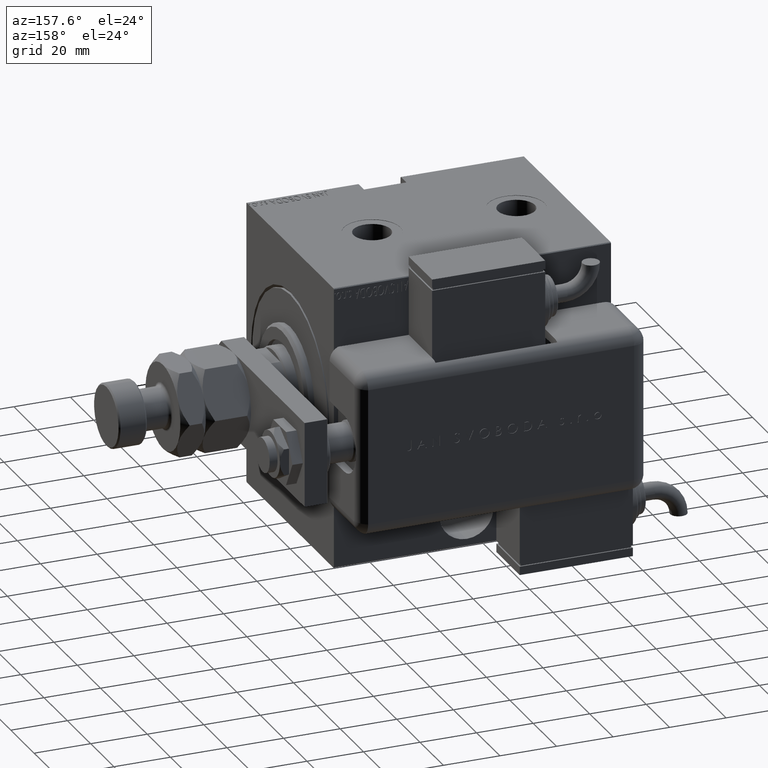
[diagram: clean part render]
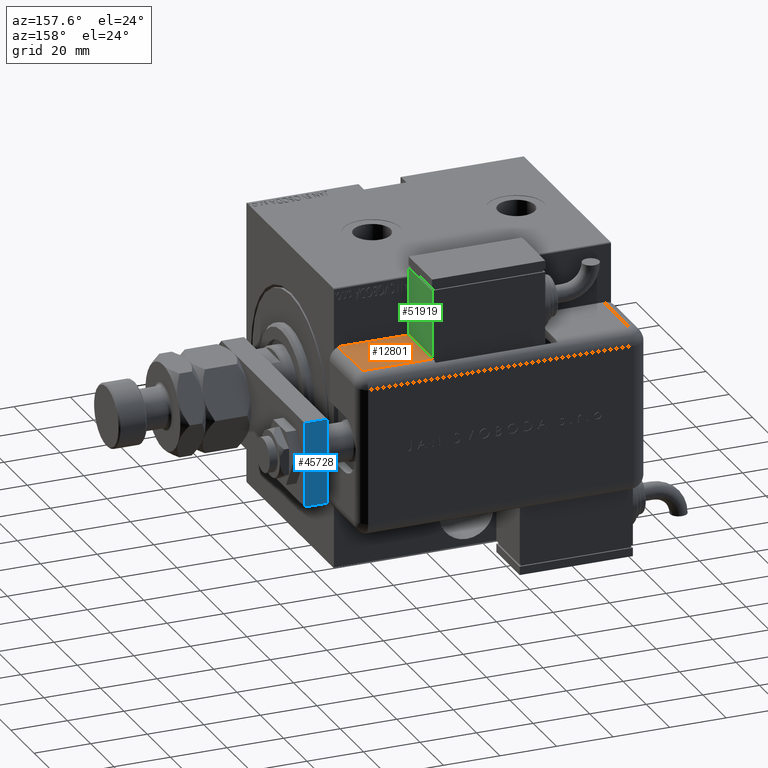
[diagram: same view with three faces highlighted in distinct colors, each labeled with its STEP entity id]
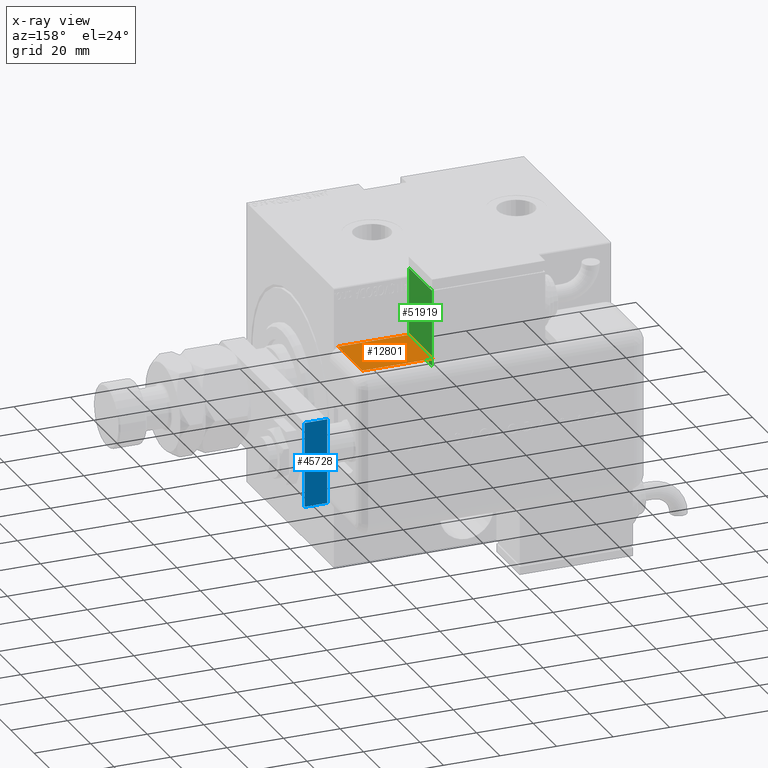
[diagram: x-ray of the same camera — body ghosted, the three highlighted faces saturated]
A machine part, auxiliary view with three faces highlighted in distinct colors.
The next image is the same camera in x-ray (body ghosted, the three faces saturated) — at least one of them is partly hidden behind the body in this view.
Their STEP definitions:

[orange] entity #12801 — the highlighted planar face has unit normal (0, 0, -1).
#1381 = VECTOR ( 'NONE', #40958, 1000.000000000000000 ) ;
#3936 = CARTESIAN_POINT ( 'NONE',  ( -28.99999999999999645, 25.79999999999998295, 99.00000000000000000 ) ) ;
#5891 = ORIENTED_EDGE ( 'NONE', *, *, #12040, .F. ) ;
#6803 = LINE ( 'NONE', #26700, #10423 ) ;
#6874 = DIRECTION ( 'NONE',  ( 1.000000000000000000, 0.000000000000000000, -0.000000000000000000 ) ) ;
#8875 = LINE ( 'NONE', #27859, #18132 ) ;
#10095 = DIRECTION ( 'NONE',  ( -0.000000000000000000, 1.000000000000000000, -0.000000000000000000 ) ) ;
#10423 = VECTOR ( 'NONE', #12383, 1000.000000000000000 ) ;
#11231 = CARTESIAN_POINT ( 'NONE',  ( -28.99999999999999645, 25.79999999999998295, 99.00000000000000000 ) ) ;
#12040 = EDGE_CURVE ( 'NONE', #29785, #57152, #60261, .T. ) ;
#12383 = DIRECTION ( 'NONE',  ( 0.000000000000000000, 0.000000000000000000, -1.000000000000000000 ) ) ;
#12801 = ADVANCED_FACE ( 'NONE', ( #34874 ), #21486, .F. ) ;
#15076 = CARTESIAN_POINT ( 'NONE',  ( -28.99999999999999645, 22.99999999999998934, 74.00000000000001421 ) ) ;
#17057 = EDGE_LOOP ( 'NONE', ( #41881, #29134, #55272, #5891 ) ) ;
#18132 = VECTOR ( 'NONE', #46826, 1000.000000000000000 ) ;
#21486 = PLANE ( 'NONE',  #28227 ) ;
#24043 = VERTEX_POINT ( 'NONE', #56518 ) ;
#26700 = CARTESIAN_POINT ( 'NONE',  ( -28.99999999999999645, 20.79999999999998295, 99.00000000000000000 ) ) ;
#27859 = CARTESIAN_POINT ( 'NONE',  ( -28.99999999999999645, -9.421223957302265857E-15, 99.00000000000000000 ) ) ;
#28227 = AXIS2_PLACEMENT_3D ( 'NONE', #11231, #6874, #30207 ) ;
#29134 = ORIENTED_EDGE ( 'NONE', *, *, #60724, .F. ) ;
#29785 = VERTEX_POINT ( 'NONE', #53088 ) ;
#29887 = VERTEX_POINT ( 'NONE', #34689 ) ;
#30207 = DIRECTION ( 'NONE',  ( -0.000000000000000000, 0.000000000000000000, -1.000000000000000000 ) ) ;
#33063 = EDGE_CURVE ( 'NONE', #57152, #29887, #8875, .T. ) ;
#34689 = CARTESIAN_POINT ( 'NONE',  ( -28.99999999999999645, -9.421223957302265857E-15, 74.00000000000001421 ) ) ;
#34874 = FACE_OUTER_BOUND ( 'NONE', #17057, .T. ) ;
#37757 = EDGE_CURVE ( 'NONE', #29785, #24043, #6803, .T. ) ;
#40958 = DIRECTION ( 'NONE',  ( 0.000000000000000000, -1.000000000000000000, 0.000000000000000000 ) ) ;
#41881 = ORIENTED_EDGE ( 'NONE', *, *, #37757, .T. ) ;
#45900 = LINE ( 'NONE', #15076, #57584 ) ;
#46826 = DIRECTION ( 'NONE',  ( -0.000000000000000000, -0.000000000000000000, -1.000000000000000000 ) ) ;
#53088 = CARTESIAN_POINT ( 'NONE',  ( -28.99999999999999645, 20.79999999999998295, 99.00000000000000000 ) ) ;
#54381 = CARTESIAN_POINT ( 'NONE',  ( -28.99999999999999645, -9.421223957302265857E-15, 99.00000000000000000 ) ) ;
#55272 = ORIENTED_EDGE ( 'NONE', *, *, #33063, .F. ) ;
#56518 = CARTESIAN_POINT ( 'NONE',  ( -28.99999999999999645, 20.79999999999998295, 74.00000000000001421 ) ) ;
#57152 = VERTEX_POINT ( 'NONE', #54381 ) ;
#57584 = VECTOR ( 'NONE', #10095, 1000.000000000000000 ) ;
#60261 = LINE ( 'NONE', #3936, #1381 ) ;
#60724 = EDGE_CURVE ( 'NONE', #29887, #24043, #45900, .T. ) ;

[blue] entity #45728 — the highlighted planar face has unit normal (0, -1, 0).
#2460 = CARTESIAN_POINT ( 'NONE',  ( -14.99999999999999822, 76.50000000000000000, 8.000000000000000000 ) ) ;
#4121 = CARTESIAN_POINT ( 'NONE',  ( 15.00000000000000355, 76.50000000000000000, 0.000000000000000000 ) ) ;
#5066 = ORIENTED_EDGE ( 'NONE', *, *, #61100, .T. ) ;
#5542 = DIRECTION ( 'NONE',  ( -0.000000000000000000, -0.000000000000000000, -1.000000000000000000 ) ) ;
#9391 = EDGE_CURVE ( 'NONE', #32461, #34037, #59295, .T. ) ;
#9951 = DIRECTION ( 'NONE',  ( -1.000000000000000000, 0.000000000000000000, 0.000000000000000000 ) ) ;
#10094 = ORIENTED_EDGE ( 'NONE', *, *, #56236, .T. ) ;
#10562 = LINE ( 'NONE', #48834, #51635 ) ;
#11986 = DIRECTION ( 'NONE',  ( -0.000000000000000000, -0.000000000000000000, -1.000000000000000000 ) ) ;
#13335 = CARTESIAN_POINT ( 'NONE',  ( 15.00000000000000355, 76.50000000000000000, 8.000000000000000000 ) ) ;
#14412 = ORIENTED_EDGE ( 'NONE', *, *, #9391, .F. ) ;
#15968 = DIRECTION ( 'NONE',  ( 0.000000000000000000, -1.000000000000000000, 0.000000000000000000 ) ) ;
#16062 = VECTOR ( 'NONE', #59460, 1000.000000000000000 ) ;
#18456 = AXIS2_PLACEMENT_3D ( 'NONE', #52718, #15968, #53034 ) ;
#18531 = VERTEX_POINT ( 'NONE', #4121 ) ;
#19814 = EDGE_CURVE ( 'NONE', #28594, #32461, #26785, .T. ) ;
#22839 = ORIENTED_EDGE ( 'NONE', *, *, #19814, .F. ) ;
#26785 = LINE ( 'NONE', #32059, #16062 ) ;
#28594 = VERTEX_POINT ( 'NONE', #13335 ) ;
#32059 = CARTESIAN_POINT ( 'NONE',  ( 15.00000000000000355, 76.50000000000000000, 8.000000000000000000 ) ) ;
#32461 = VERTEX_POINT ( 'NONE', #2460 ) ;
#33292 = EDGE_LOOP ( 'NONE', ( #5066, #14412, #22839, #10094 ) ) ;
#34037 = VERTEX_POINT ( 'NONE', #48699 ) ;
#35203 = VECTOR ( 'NONE', #11986, 1000.000000000000000 ) ;
#42436 = FACE_OUTER_BOUND ( 'NONE', #33292, .T. ) ;
#44106 = CARTESIAN_POINT ( 'NONE',  ( 15.00000000000000355, 76.50000000000000000, 8.000000000000000000 ) ) ;
#45728 = ADVANCED_FACE ( 'NONE', ( #42436 ), #61419, .F. ) ;
#48699 = CARTESIAN_POINT ( 'NONE',  ( -14.99999999999999822, 76.50000000000000000, 0.000000000000000000 ) ) ;
#48834 = CARTESIAN_POINT ( 'NONE',  ( 15.00000000000000355, 76.50000000000000000, 0.000000000000000000 ) ) ;
#51635 = VECTOR ( 'NONE', #9951, 1000.000000000000000 ) ;
#52629 = VECTOR ( 'NONE', #5542, 1000.000000000000000 ) ;
#52718 = CARTESIAN_POINT ( 'NONE',  ( 15.00000000000000355, 76.50000000000000000, 8.000000000000000000 ) ) ;
#53034 = DIRECTION ( 'NONE',  ( 0.000000000000000000, -0.000000000000000000, -1.000000000000000000 ) ) ;
#53715 = CARTESIAN_POINT ( 'NONE',  ( -14.99999999999999822, 76.50000000000000000, 8.000000000000000000 ) ) ;
#56236 = EDGE_CURVE ( 'NONE', #28594, #18531, #57812, .T. ) ;
#57812 = LINE ( 'NONE', #44106, #52629 ) ;
#59295 = LINE ( 'NONE', #53715, #35203 ) ;
#59460 = DIRECTION ( 'NONE',  ( -1.000000000000000000, 0.000000000000000000, 0.000000000000000000 ) ) ;
#61100 = EDGE_CURVE ( 'NONE', #18531, #34037, #10562, .T. ) ;
#61419 = PLANE ( 'NONE',  #18456 ) ;

[green] entity #51919 — the highlighted planar face has unit normal (-1, 0, 0).
#576 = VECTOR ( 'NONE', #40226, 1000.000000000000000 ) ;
#1451 = CARTESIAN_POINT ( 'NONE',  ( 20.00000000000005329, -13.49999999999996092, 10.00000000000000000 ) ) ;
#2586 = CARTESIAN_POINT ( 'NONE',  ( 20.00000000000005329, -13.49999999999996092, -10.00000000000000000 ) ) ;
#4299 = CARTESIAN_POINT ( 'NONE',  ( 20.00000000000005684, 13.50000000000003730, 10.00000000000000000 ) ) ;
#4675 = CARTESIAN_POINT ( 'NONE',  ( 20.00000000000005684, 13.50000000000003730, 10.00000000000000000 ) ) ;
#5799 = CARTESIAN_POINT ( 'NONE',  ( 20.00000000000005329, -13.49999999999996092, 10.00000000000000000 ) ) ;
#8964 = LINE ( 'NONE', #4299, #13782 ) ;
#9377 = EDGE_CURVE ( 'NONE', #49772, #53290, #25406, .T. ) ;
#10087 = VERTEX_POINT ( 'NONE', #60315 ) ;
#13782 = VECTOR ( 'NONE', #37882, 1000.000000000000000 ) ;
#14721 = VERTEX_POINT ( 'NONE', #4675 ) ;
#16529 = ORIENTED_EDGE ( 'NONE', *, *, #36305, .T. ) ;
#16833 = DIRECTION ( 'NONE',  ( -1.284980352575412699E-16, -1.000000000000000000, 0.000000000000000000 ) ) ;
#19535 = EDGE_LOOP ( 'NONE', ( #16529, #26207, #23123, #53714 ) ) ;
#23123 = ORIENTED_EDGE ( 'NONE', *, *, #49856, .F. ) ;
#25406 = LINE ( 'NONE', #1451, #45156 ) ;
#25629 = LINE ( 'NONE', #2586, #576 ) ;
#26207 = ORIENTED_EDGE ( 'NONE', *, *, #55338, .F. ) ;
#30230 = PLANE ( 'NONE',  #61353 ) ;
#31145 = CARTESIAN_POINT ( 'NONE',  ( 20.00000000000005329, -13.49999999999996092, 10.00000000000000000 ) ) ;
#31958 = CARTESIAN_POINT ( 'NONE',  ( 20.00000000000005329, -13.49999999999996092, 10.00000000000000000 ) ) ;
#36118 = FACE_OUTER_BOUND ( 'NONE', #19535, .T. ) ;
#36305 = EDGE_CURVE ( 'NONE', #53290, #10087, #25629, .T. ) ;
#37415 = VECTOR ( 'NONE', #42822, 1000.000000000000000 ) ;
#37882 = DIRECTION ( 'NONE',  ( -0.000000000000000000, -0.000000000000000000, -1.000000000000000000 ) ) ;
#39088 = LINE ( 'NONE', #5799, #37415 ) ;
#40226 = DIRECTION ( 'NONE',  ( 1.284980352575412699E-16, 1.000000000000000000, 0.000000000000000000 ) ) ;
#42822 = DIRECTION ( 'NONE',  ( 1.284980352575412699E-16, 1.000000000000000000, 0.000000000000000000 ) ) ;
#44843 = DIRECTION ( 'NONE',  ( -1.000000000000000000, 1.284980352575412699E-16, 0.000000000000000000 ) ) ;
#44973 = DIRECTION ( 'NONE',  ( -0.000000000000000000, -0.000000000000000000, -1.000000000000000000 ) ) ;
#45156 = VECTOR ( 'NONE', #44973, 1000.000000000000000 ) ;
#49772 = VERTEX_POINT ( 'NONE', #31958 ) ;
#49856 = EDGE_CURVE ( 'NONE', #49772, #14721, #39088, .T. ) ;
#50787 = CARTESIAN_POINT ( 'NONE',  ( 20.00000000000005329, -13.49999999999996092, -10.00000000000000000 ) ) ;
#51919 = ADVANCED_FACE ( 'NONE', ( #36118 ), #30230, .F. ) ;
#53290 = VERTEX_POINT ( 'NONE', #50787 ) ;
#53714 = ORIENTED_EDGE ( 'NONE', *, *, #9377, .T. ) ;
#55338 = EDGE_CURVE ( 'NONE', #14721, #10087, #8964, .T. ) ;
#60315 = CARTESIAN_POINT ( 'NONE',  ( 20.00000000000005684, 13.50000000000003730, -10.00000000000000000 ) ) ;
#61353 = AXIS2_PLACEMENT_3D ( 'NONE', #31145, #44843, #16833 ) ;